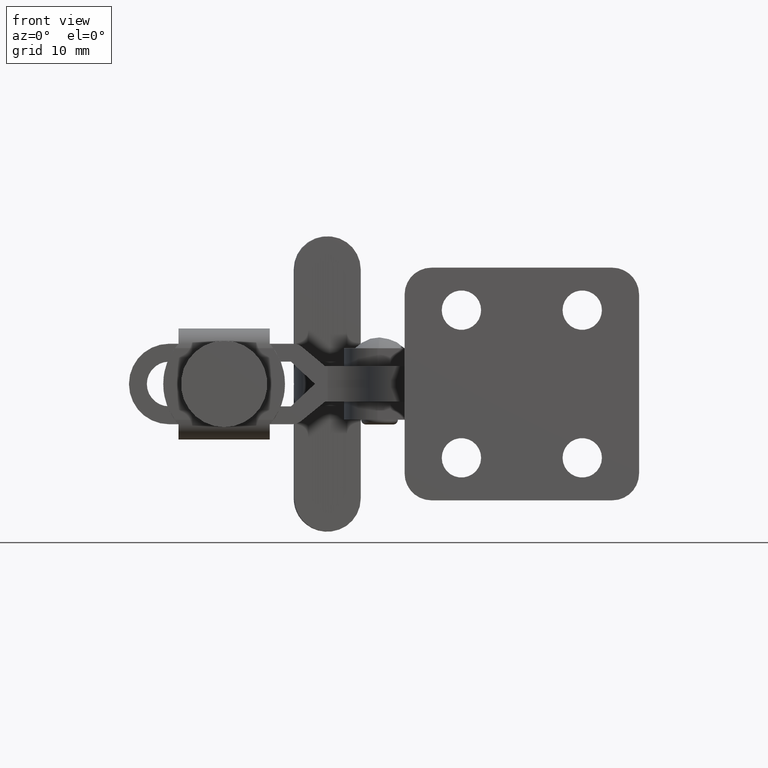
[diagram: clean part render]
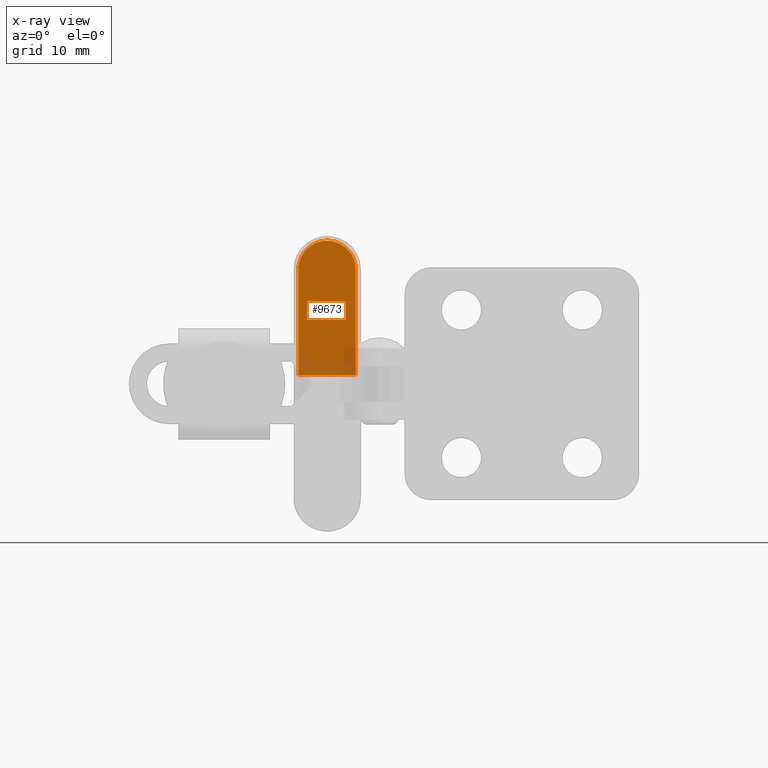
[diagram: x-ray — body ghosted, one internal face saturated and labeled with its STEP entity id]
A machine part, front view, then the same camera in x-ray: the body is ghosted and one INTERNAL B-rep face — a face not visible from any outside direction — is saturated and labeled: STEP entity #9673.
In plain terms, the highlighted planar face has unit normal (0.031, -0.9995, 0).
Its self-contained STEP definition (entity closure, byte-faithful):
#81 = CARTESIAN_POINT ( 'NONE',  ( -1.969089292418204400, 73.38713200858566700, 27.14979700761274700 ) ) ;
#415 = CARTESIAN_POINT ( 'NONE',  ( -1.969089292418204400, 73.38713200858566700, 23.94897143930094100 ) ) ;
#1034 = CARTESIAN_POINT ( 'NONE',  ( -1.969089292418204400, 73.38713200858566700, 23.94897143930094100 ) ) ;
#1801 = CARTESIAN_POINT ( 'NONE',  ( -1.979080859708173700, 73.38682225490835300, 12.14979700761274700 ) ) ;
#2218 = LINE ( 'NONE', #81, #8081 ) ;
#2414 = VERTEX_POINT ( 'NONE', #415 ) ;
#3037 = CARTESIAN_POINT ( 'NONE',  ( -8.387657171195275700, 73.18814670969494800, 13.14979700761274700 ) ) ;
#3063 = CARTESIAN_POINT ( 'NONE',  ( -1.979080859708173700, 73.38682225490835300, 27.14979700761274700 ) ) ;
#3591 = ORIENTED_EDGE ( 'NONE', *, *, #8325, .F. ) ;
#3640 = VERTEX_POINT ( 'NONE', #4954 ) ;
#3646 = EDGE_CURVE ( 'NONE', #2414, #5386, #2218, .T. ) ;
#4028 = VECTOR ( 'NONE', #9148, 1000.000000000000000 ) ;
#4092 = CARTESIAN_POINT ( 'NONE',  ( -8.387657171195394700, 73.18814670969496200, 30.37062257592453200 ) ) ;
#4613 = EDGE_CURVE ( 'NONE', #5386, #7591, #9904, .T. ) ;
#4615 = DIRECTION ( 'NONE',  ( 0.9995197992869301300, 0.03098662345940447400, 0.0000000000000000000 ) ) ;
#4954 = CARTESIAN_POINT ( 'NONE',  ( -8.387657171195275700, 73.18814670969494800, 23.94897143930093700 ) ) ;
#5056 = EDGE_LOOP ( 'NONE', ( #7710, #3591, #7759, #8594 ) ) ;
#5386 = VERTEX_POINT ( 'NONE', #6075 ) ;
#5525 = AXIS2_PLACEMENT_3D ( 'NONE', #3063, #9210, #4615 ) ;
#5631 = CARTESIAN_POINT ( 'NONE',  ( -1.969089292418337600, 73.38713200858566700, 30.37062257592453200 ) ) ;
#5656 =( BOUNDED_CURVE ( )  B_SPLINE_CURVE ( 3, ( #9443, #4092, #5631, #1034 ),
 .UNSPECIFIED., .F., .F. ) 
 B_SPLINE_CURVE_WITH_KNOTS ( ( 4, 4 ),
 ( 3.141592653589795300, 6.283185307179582700 ),
 .UNSPECIFIED. ) 
 CURVE ( )  GEOMETRIC_REPRESENTATION_ITEM ( )  RATIONAL_B_SPLINE_CURVE ( ( 1.000000000000000000, 0.3333333333333353100, 0.3333333333333353100, 1.000000000000000000 ) ) 
 REPRESENTATION_ITEM ( '' )  );
#5840 = VECTOR ( 'NONE', #7126, 1000.000000000000100 ) ;
#6026 = EDGE_CURVE ( 'NONE', #3640, #7591, #8082, .T. ) ;
#6075 = CARTESIAN_POINT ( 'NONE',  ( -1.969089292418204400, 73.38713200858566700, 12.14979700761274700 ) ) ;
#7126 = DIRECTION ( 'NONE',  ( -0.9995197992869301300, -0.03098662345940447400, -0.0000000000000000000 ) ) ;
#7591 = VERTEX_POINT ( 'NONE', #9848 ) ;
#7654 = PLANE ( 'NONE',  #5525 ) ;
#7710 = ORIENTED_EDGE ( 'NONE', *, *, #3646, .F. ) ;
#7759 = ORIENTED_EDGE ( 'NONE', *, *, #6026, .T. ) ;
#8081 = VECTOR ( 'NONE', #9024, 1000.000000000000000 ) ;
#8082 = LINE ( 'NONE', #3037, #4028 ) ;
#8325 = EDGE_CURVE ( 'NONE', #3640, #2414, #5656, .T. ) ;
#8594 = ORIENTED_EDGE ( 'NONE', *, *, #4613, .F. ) ;
#9024 = DIRECTION ( 'NONE',  ( 0.0000000000000000000, 0.0000000000000000000, -1.000000000000000000 ) ) ;
#9148 = DIRECTION ( 'NONE',  ( 0.0000000000000000000, 0.0000000000000000000, -1.000000000000000000 ) ) ;
#9210 = DIRECTION ( 'NONE',  ( 0.03098662345940447400, -0.9995197992869301300, 0.0000000000000000000 ) ) ;
#9218 = FACE_OUTER_BOUND ( 'NONE', #5056, .T. ) ;
#9443 = CARTESIAN_POINT ( 'NONE',  ( -8.387657171195275700, 73.18814670969494800, 23.94897143930093700 ) ) ;
#9673 = ADVANCED_FACE ( 'NONE', ( #9218 ), #7654, .T. ) ;
#9848 = CARTESIAN_POINT ( 'NONE',  ( -8.387657171195275700, 73.18814670969494800, 12.14979700761274700 ) ) ;
#9904 = LINE ( 'NONE', #1801, #5840 ) ;